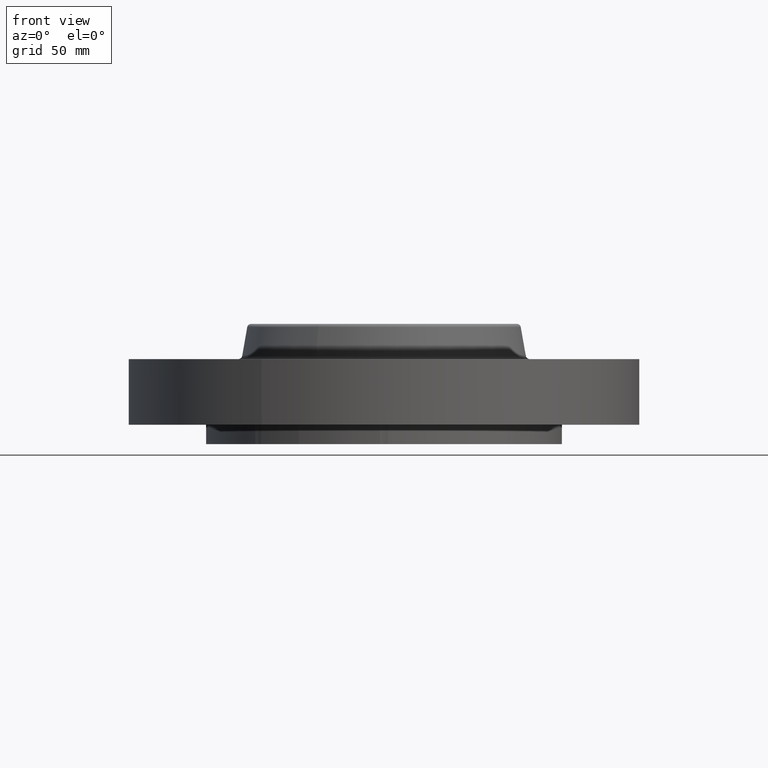
[diagram: clean part render]
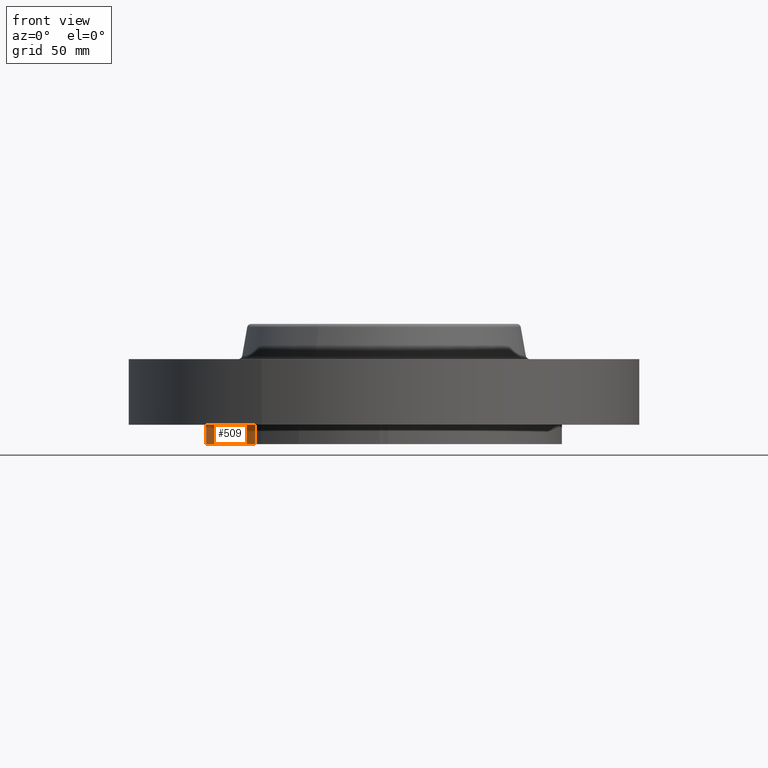
[diagram: same view with one face highlighted and labeled with its STEP entity id]
A machine part, front view. The second image highlights one B-rep face of the part: STEP entity #509.
In plain terms, the highlighted cylindrical surface (partial cylindrical patch) has radius 73.025 mm, axis along (0, 0, -1).
Its self-contained STEP definition (entity closure, byte-faithful):
#258=AXIS2_PLACEMENT_3D('Circle Axis2P3D',#256,#257,$) ;
#359=AXIS2_PLACEMENT_3D('Cylinder Axis2P3D',#356,#357,#358) ;
#500=AXIS2_PLACEMENT_3D('Circle Axis2P3D',#498,#499,$) ;
#253=CARTESIAN_POINT('Vertex',(-2.07605138692,-1.98887798493,-0.313000000001)) ;
#256=CARTESIAN_POINT('Axis2P3D Location',(0.,0.,-0.313000000001)) ;
#260=CARTESIAN_POINT('Vertex',(-2.87433912388,-0.0616409036851,-0.313000000001)) ;
#356=CARTESIAN_POINT('Axis2P3D Location',(0.,0.,0.658500000003)) ;
#484=CARTESIAN_POINT('Line Origine',(-2.87433912388,-0.0616409036851,-0.156500000001)) ;
#488=CARTESIAN_POINT('Vertex',(-2.87433912388,-0.0616409036851,2.79741234551E-016)) ;
#491=CARTESIAN_POINT('Line Origine',(-2.07605138692,-1.98887798493,-0.156500000001)) ;
#495=CARTESIAN_POINT('Vertex',(-2.07605138692,-1.98887798493,2.79741234551E-016)) ;
#498=CARTESIAN_POINT('Axis2P3D Location',(0.,0.,2.79741234551E-016)) ;
#257=DIRECTION('Axis2P3D Direction',(0.,0.,-0.0393700787402)) ;
#357=DIRECTION('Axis2P3D Direction',(0.,0.,-0.0393700787402)) ;
#358=DIRECTION('Axis2P3D XDirection',(0.0188750212049,0.0345504945626,0.)) ;
#485=DIRECTION('Vector Direction',(0.,0.,-0.0393700787402)) ;
#492=DIRECTION('Vector Direction',(0.,0.,-0.0393700787402)) ;
#499=DIRECTION('Axis2P3D Direction',(0.,0.,-0.0393700787402)) ;
#486=VECTOR('Line Direction',#485,0.0393700787402) ;
#493=VECTOR('Line Direction',#492,0.0393700787402) ;
#504=ORIENTED_EDGE('',*,*,#490,.T.) ;
#505=ORIENTED_EDGE('',*,*,#262,.F.) ;
#506=ORIENTED_EDGE('',*,*,#497,.F.) ;
#507=ORIENTED_EDGE('',*,*,#502,.T.) ;
#509=ADVANCED_FACE('PartBody',(#508),#360,.T.) ;
#259=CIRCLE('generated circle',#258,2.87500000001) ;
#501=CIRCLE('generated circle',#500,2.87500000001) ;
#360=CYLINDRICAL_SURFACE('generated cylinder',#359,2.87500000001) ;
#262=EDGE_CURVE('',#254,#261,#259,.T.) ;
#490=EDGE_CURVE('',#489,#261,#487,.T.) ;
#497=EDGE_CURVE('',#496,#254,#494,.T.) ;
#502=EDGE_CURVE('',#496,#489,#501,.T.) ;
#503=EDGE_LOOP('',(#504,#505,#506,#507)) ;
#508=FACE_OUTER_BOUND('',#503,.T.) ;
#487=LINE('Line',#484,#486) ;
#494=LINE('Line',#491,#493) ;
#254=VERTEX_POINT('',#253) ;
#261=VERTEX_POINT('',#260) ;
#489=VERTEX_POINT('',#488) ;
#496=VERTEX_POINT('',#495) ;